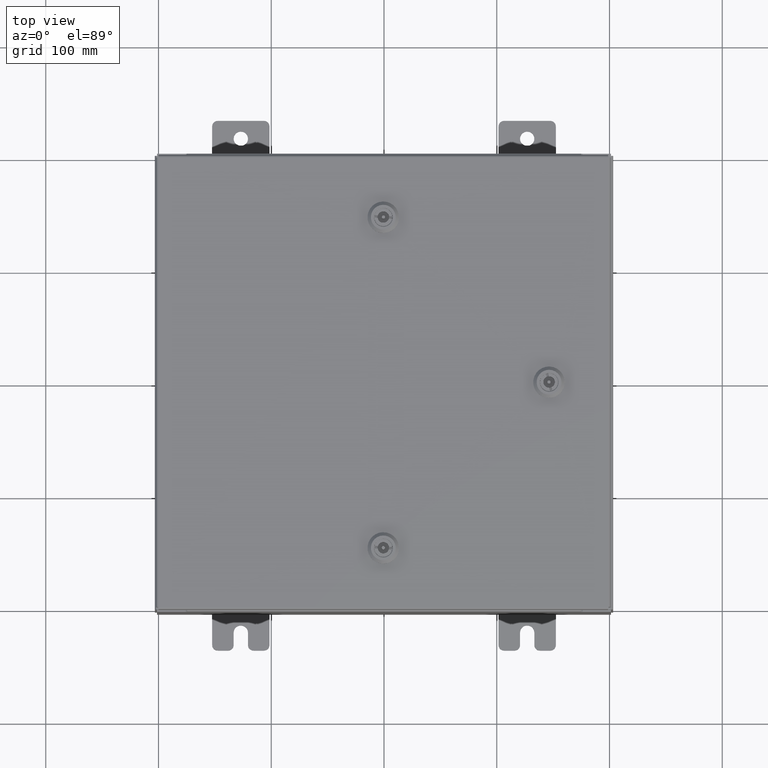
[diagram: clean part render]
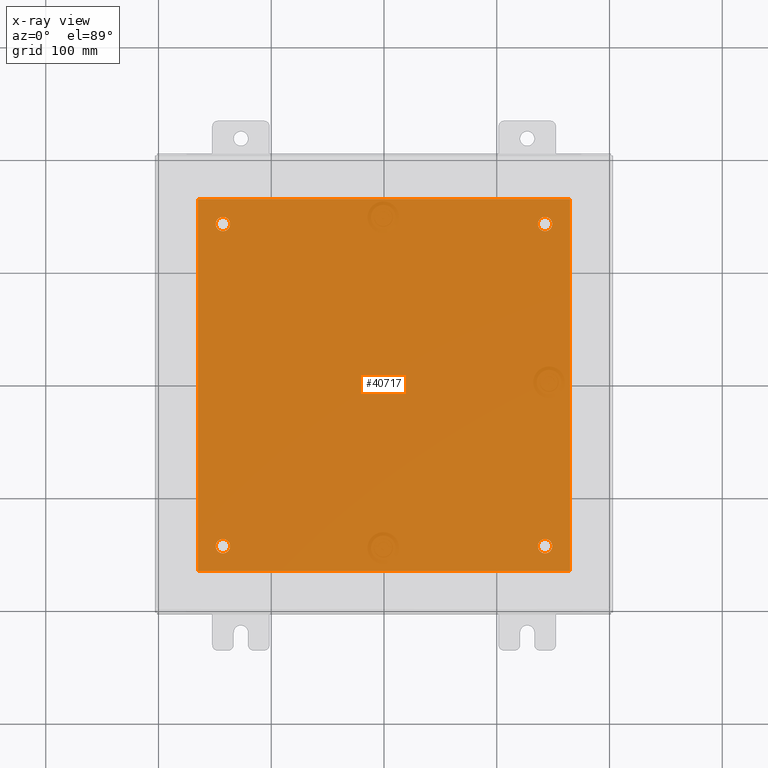
[diagram: x-ray — body ghosted, one internal face saturated and labeled with its STEP entity id]
A machine part, top view, then the same camera in x-ray: the body is ghosted and one INTERNAL B-rep face — a face not visible from any outside direction — is saturated and labeled: STEP entity #40717.
In plain terms, the highlighted planar face has unit normal (0, 0, -1).
Its self-contained STEP definition (entity closure, byte-faithful):
#895 = EDGE_CURVE ( 'NONE', #39333, #12388, #53051, .T. ) ;
#1038 = VERTEX_POINT ( 'NONE', #51878 ) ;
#1504 = ORIENTED_EDGE ( 'NONE', *, *, #45316, .F. ) ;
#1803 = CARTESIAN_POINT ( 'NONE',  ( -5.625000000000002700, -5.625000000000000900, -0.1039999999999999800 ) ) ;
#4151 = VERTEX_POINT ( 'NONE', #52178 ) ;
#4572 = VECTOR ( 'NONE', #57990, 39.37007874015748100 ) ;
#4679 = CARTESIAN_POINT ( 'NONE',  ( -5.875000000000001800, 5.625000000000000900, -0.1039999999999999800 ) ) ;
#4692 = LINE ( 'NONE', #42830, #53039 ) ;
#5050 = CARTESIAN_POINT ( 'NONE',  ( -5.625000000000002700, 5.625000000000000900, -0.1039999999999999800 ) ) ;
#5145 = VERTEX_POINT ( 'NONE', #47042 ) ;
#5240 = ORIENTED_EDGE ( 'NONE', *, *, #47239, .F. ) ;
#6123 = EDGE_LOOP ( 'NONE', ( #38484, #52224 ) ) ;
#6671 = DIRECTION ( 'NONE',  ( -1.000000000000000000, 0.0000000000000000000, 0.0000000000000000000 ) ) ;
#7407 = ORIENTED_EDGE ( 'NONE', *, *, #26626, .T. ) ;
#7596 = LINE ( 'NONE', #58374, #31797 ) ;
#8006 = EDGE_CURVE ( 'NONE', #15645, #28620, #49849, .T. ) ;
#8097 = EDGE_CURVE ( 'NONE', #21565, #32996, #21080, .T. ) ;
#9805 = VERTEX_POINT ( 'NONE', #32401 ) ;
#9856 = DIRECTION ( 'NONE',  ( -1.000000000000000000, 0.0000000000000000000, 0.0000000000000000000 ) ) ;
#10341 = VECTOR ( 'NONE', #28320, 39.37007874015748100 ) ;
#10533 = DIRECTION ( 'NONE',  ( -0.0000000000000000000, -0.0000000000000000000, 1.000000000000000000 ) ) ;
#10569 = EDGE_LOOP ( 'NONE', ( #29155, #38732 ) ) ;
#11844 = AXIS2_PLACEMENT_3D ( 'NONE', #57527, #28673, #62394 ) ;
#11845 = LINE ( 'NONE', #38270, #10341 ) ;
#12259 = EDGE_LOOP ( 'NONE', ( #16802, #7407 ) ) ;
#12388 = VERTEX_POINT ( 'NONE', #4679 ) ;
#12659 = FACE_BOUND ( 'NONE', #43933, .T. ) ;
#15195 = CARTESIAN_POINT ( 'NONE',  ( -5.375000000000002700, 5.625000000000000900, -0.1039999999999999800 ) ) ;
#15645 = VERTEX_POINT ( 'NONE', #18781 ) ;
#15711 = FACE_BOUND ( 'NONE', #10569, .T. ) ;
#16802 = ORIENTED_EDGE ( 'NONE', *, *, #23282, .T. ) ;
#17860 = VERTEX_POINT ( 'NONE', #54777 ) ;
#18468 = CARTESIAN_POINT ( 'NONE',  ( 0.0000000000000000000, 0.0000000000000000000, -0.1039999999999999800 ) ) ;
#18781 = CARTESIAN_POINT ( 'NONE',  ( 5.875000000000000900, -5.625000000000000900, -0.1039999999999999800 ) ) ;
#18857 = CARTESIAN_POINT ( 'NONE',  ( 5.375000000000003600, -5.625000000000000900, -0.1039999999999999800 ) ) ;
#19039 = EDGE_CURVE ( 'NONE', #32996, #21565, #48262, .T. ) ;
#19272 = AXIS2_PLACEMENT_3D ( 'NONE', #18468, #28195, #61909 ) ;
#19432 = AXIS2_PLACEMENT_3D ( 'NONE', #55237, #57337, #48220 ) ;
#19713 = EDGE_LOOP ( 'NONE', ( #56108, #49925, #5240, #1504 ) ) ;
#20824 = AXIS2_PLACEMENT_3D ( 'NONE', #39559, #10533, #44421 ) ;
#21080 = CIRCLE ( 'NONE', #27796, 0.2499999999999987000 ) ;
#21565 = VERTEX_POINT ( 'NONE', #34083 ) ;
#23282 = EDGE_CURVE ( 'NONE', #4151, #5145, #38261, .T. ) ;
#23472 = CIRCLE ( 'NONE', #32053, 0.2499999999999998100 ) ;
#24287 = CARTESIAN_POINT ( 'NONE',  ( 6.500000000000000000, -6.499999999999999100, -0.1039999999999999800 ) ) ;
#25101 = AXIS2_PLACEMENT_3D ( 'NONE', #1803, #35632, #6671 ) ;
#25247 = CARTESIAN_POINT ( 'NONE',  ( 5.375000000000003600, 5.625000000000000900, -0.1039999999999999800 ) ) ;
#26626 = EDGE_CURVE ( 'NONE', #5145, #4151, #50118, .T. ) ;
#27638 = CARTESIAN_POINT ( 'NONE',  ( 5.625000000000002700, -5.625000000000000900, -0.1039999999999999800 ) ) ;
#27796 = AXIS2_PLACEMENT_3D ( 'NONE', #28764, #43295, #42663 ) ;
#28195 = DIRECTION ( 'NONE',  ( 0.0000000000000000000, 0.0000000000000000000, -1.000000000000000000 ) ) ;
#28320 = DIRECTION ( 'NONE',  ( 1.000000000000000000, 0.0000000000000000000, 0.0000000000000000000 ) ) ;
#28620 = VERTEX_POINT ( 'NONE', #18857 ) ;
#28673 = DIRECTION ( 'NONE',  ( -0.0000000000000000000, -0.0000000000000000000, 1.000000000000000000 ) ) ;
#28764 = CARTESIAN_POINT ( 'NONE',  ( 5.625000000000002700, 5.625000000000000900, -0.1039999999999999800 ) ) ;
#29155 = ORIENTED_EDGE ( 'NONE', *, *, #8097, .T. ) ;
#29535 = DIRECTION ( 'NONE',  ( -0.0000000000000000000, -1.000000000000000000, -0.0000000000000000000 ) ) ;
#31797 = VECTOR ( 'NONE', #29535, 39.37007874015748100 ) ;
#31983 = ORIENTED_EDGE ( 'NONE', *, *, #47101, .T. ) ;
#32053 = AXIS2_PLACEMENT_3D ( 'NONE', #5050, #38878, #9856 ) ;
#32401 = CARTESIAN_POINT ( 'NONE',  ( -6.500000000000000000, 6.500000000000000900, -0.1039999999999999800 ) ) ;
#32453 = DIRECTION ( 'NONE',  ( -1.000000000000000000, 0.0000000000000000000, 0.0000000000000000000 ) ) ;
#32508 = EDGE_CURVE ( 'NONE', #28620, #15645, #35118, .T. ) ;
#32996 = VERTEX_POINT ( 'NONE', #25247 ) ;
#33353 = DIRECTION ( 'NONE',  ( -1.000000000000000000, 0.0000000000000000000, 0.0000000000000000000 ) ) ;
#33908 = AXIS2_PLACEMENT_3D ( 'NONE', #27638, #61349, #32453 ) ;
#34083 = CARTESIAN_POINT ( 'NONE',  ( 5.875000000000000900, 5.625000000000000900, -0.1039999999999999800 ) ) ;
#35049 = CARTESIAN_POINT ( 'NONE',  ( 5.625000000000002700, -5.625000000000000900, -0.1039999999999999800 ) ) ;
#35118 = CIRCLE ( 'NONE', #33908, 0.2499999999999987000 ) ;
#35632 = DIRECTION ( 'NONE',  ( -0.0000000000000000000, -0.0000000000000000000, 1.000000000000000000 ) ) ;
#38261 = CIRCLE ( 'NONE', #25101, 0.2499999999999998100 ) ;
#38270 = CARTESIAN_POINT ( 'NONE',  ( -6.500000000000000000, -6.499999999999999100, -0.1039999999999999800 ) ) ;
#38414 = FACE_BOUND ( 'NONE', #6123, .T. ) ;
#38484 = ORIENTED_EDGE ( 'NONE', *, *, #8006, .T. ) ;
#38732 = ORIENTED_EDGE ( 'NONE', *, *, #19039, .T. ) ;
#38878 = DIRECTION ( 'NONE',  ( -0.0000000000000000000, -0.0000000000000000000, 1.000000000000000000 ) ) ;
#39333 = VERTEX_POINT ( 'NONE', #15195 ) ;
#39559 = CARTESIAN_POINT ( 'NONE',  ( 5.625000000000002700, 5.625000000000000900, -0.1039999999999999800 ) ) ;
#40717 = ADVANCED_FACE ( 'NONE', ( #62510, #38414, #15711, #12659, #49745 ), #42589, .T. ) ;
#41358 = EDGE_CURVE ( 'NONE', #1038, #17860, #11845, .T. ) ;
#42589 = PLANE ( 'NONE',  #19272 ) ;
#42663 = DIRECTION ( 'NONE',  ( -1.000000000000000000, 0.0000000000000000000, 0.0000000000000000000 ) ) ;
#42830 = CARTESIAN_POINT ( 'NONE',  ( -6.500000000000000000, 6.500000000000000900, -0.1039999999999999800 ) ) ;
#43295 = DIRECTION ( 'NONE',  ( -0.0000000000000000000, -0.0000000000000000000, 1.000000000000000000 ) ) ;
#43933 = EDGE_LOOP ( 'NONE', ( #49471, #31983 ) ) ;
#44421 = DIRECTION ( 'NONE',  ( -1.000000000000000000, 0.0000000000000000000, 0.0000000000000000000 ) ) ;
#45316 = EDGE_CURVE ( 'NONE', #59002, #9805, #4692, .T. ) ;
#47042 = CARTESIAN_POINT ( 'NONE',  ( -5.875000000000001800, -5.625000000000000900, -0.1039999999999999800 ) ) ;
#47101 = EDGE_CURVE ( 'NONE', #12388, #39333, #23472, .T. ) ;
#47239 = EDGE_CURVE ( 'NONE', #9805, #1038, #7596, .T. ) ;
#48220 = DIRECTION ( 'NONE',  ( -1.000000000000000000, 0.0000000000000000000, 0.0000000000000000000 ) ) ;
#48262 = CIRCLE ( 'NONE', #20824, 0.2499999999999987000 ) ;
#48396 = CARTESIAN_POINT ( 'NONE',  ( 6.500000000000000000, 6.500000000000000900, -0.1039999999999999800 ) ) ;
#48777 = EDGE_CURVE ( 'NONE', #17860, #59002, #54410, .T. ) ;
#49471 = ORIENTED_EDGE ( 'NONE', *, *, #895, .T. ) ;
#49745 = FACE_OUTER_BOUND ( 'NONE', #19713, .T. ) ;
#49849 = CIRCLE ( 'NONE', #61305, 0.2499999999999987000 ) ;
#49925 = ORIENTED_EDGE ( 'NONE', *, *, #41358, .F. ) ;
#50118 = CIRCLE ( 'NONE', #11844, 0.2499999999999998100 ) ;
#51878 = CARTESIAN_POINT ( 'NONE',  ( -6.500000000000000000, -6.499999999999999100, -0.1039999999999999800 ) ) ;
#52178 = CARTESIAN_POINT ( 'NONE',  ( -5.375000000000002700, -5.625000000000000900, -0.1039999999999999800 ) ) ;
#52224 = ORIENTED_EDGE ( 'NONE', *, *, #32508, .T. ) ;
#53039 = VECTOR ( 'NONE', #57070, 39.37007874015748100 ) ;
#53051 = CIRCLE ( 'NONE', #19432, 0.2499999999999998100 ) ;
#54410 = LINE ( 'NONE', #24287, #4572 ) ;
#54777 = CARTESIAN_POINT ( 'NONE',  ( 6.500000000000000000, -6.499999999999999100, -0.1039999999999999800 ) ) ;
#55237 = CARTESIAN_POINT ( 'NONE',  ( -5.625000000000002700, 5.625000000000000900, -0.1039999999999999800 ) ) ;
#56108 = ORIENTED_EDGE ( 'NONE', *, *, #48777, .F. ) ;
#57070 = DIRECTION ( 'NONE',  ( -1.000000000000000000, -0.0000000000000000000, -0.0000000000000000000 ) ) ;
#57337 = DIRECTION ( 'NONE',  ( -0.0000000000000000000, -0.0000000000000000000, 1.000000000000000000 ) ) ;
#57527 = CARTESIAN_POINT ( 'NONE',  ( -5.625000000000002700, -5.625000000000000900, -0.1039999999999999800 ) ) ;
#57990 = DIRECTION ( 'NONE',  ( 0.0000000000000000000, 1.000000000000000000, 0.0000000000000000000 ) ) ;
#58374 = CARTESIAN_POINT ( 'NONE',  ( -6.500000000000000000, -6.499999999999999100, -0.1039999999999999800 ) ) ;
#59002 = VERTEX_POINT ( 'NONE', #48396 ) ;
#60788 = DIRECTION ( 'NONE',  ( -0.0000000000000000000, -0.0000000000000000000, 1.000000000000000000 ) ) ;
#61305 = AXIS2_PLACEMENT_3D ( 'NONE', #35049, #60788, #33353 ) ;
#61349 = DIRECTION ( 'NONE',  ( -0.0000000000000000000, -0.0000000000000000000, 1.000000000000000000 ) ) ;
#61909 = DIRECTION ( 'NONE',  ( -1.000000000000000000, 0.0000000000000000000, -0.0000000000000000000 ) ) ;
#62394 = DIRECTION ( 'NONE',  ( -1.000000000000000000, 0.0000000000000000000, 0.0000000000000000000 ) ) ;
#62510 = FACE_BOUND ( 'NONE', #12259, .T. ) ;